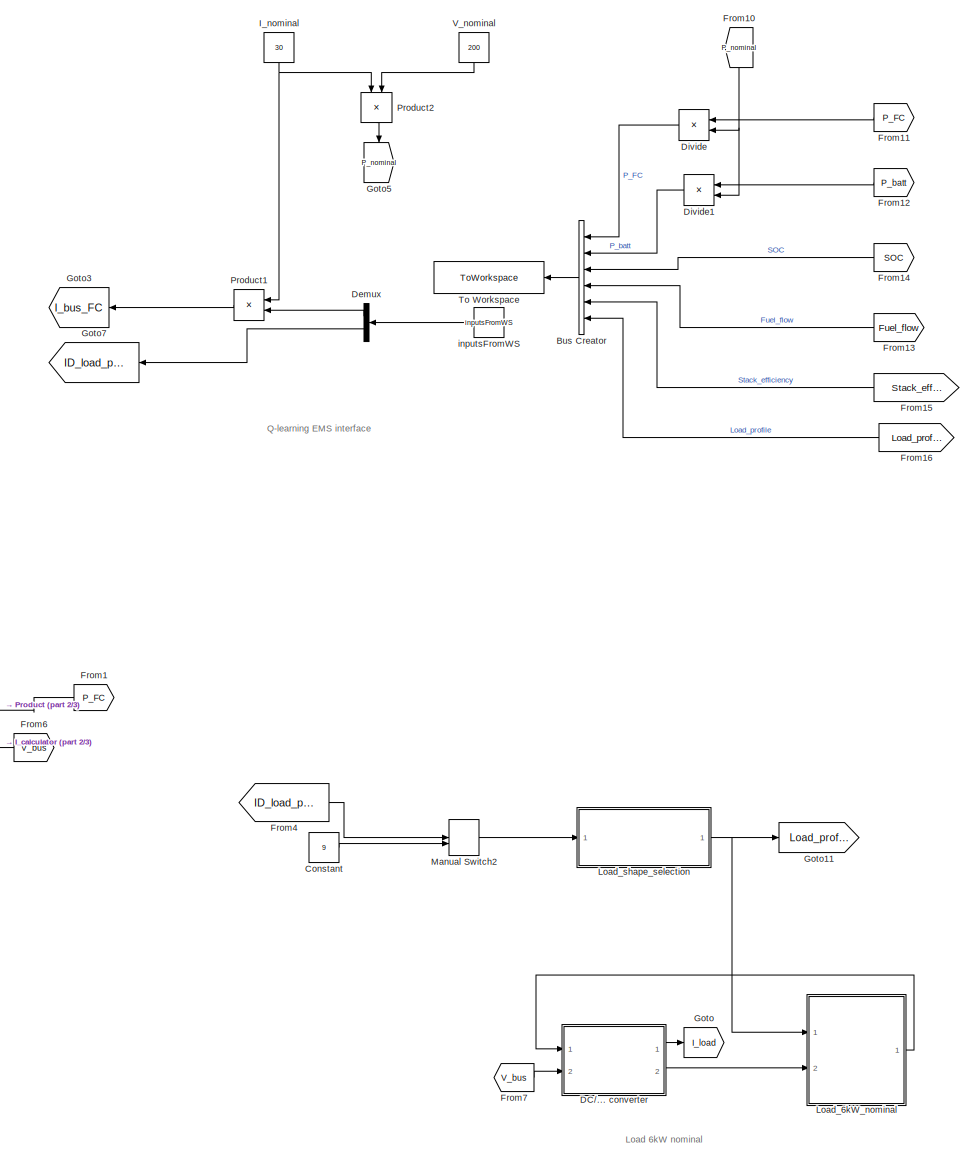
[diagram: root canvas - part 1/3, right side, full height]
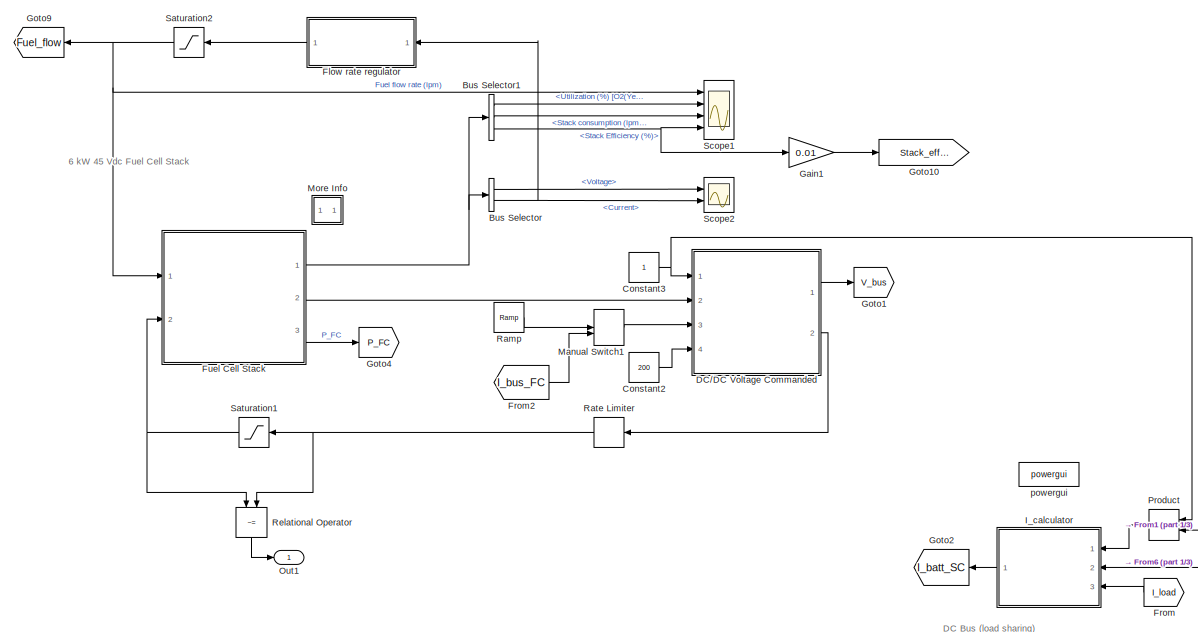
[diagram: root canvas - part 2/3, middle left region]
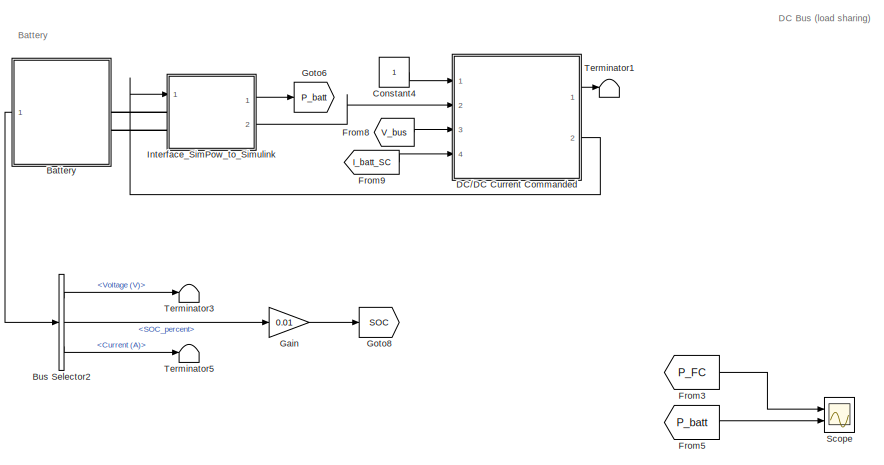
[diagram: root canvas - part 3/3, bottom left region]
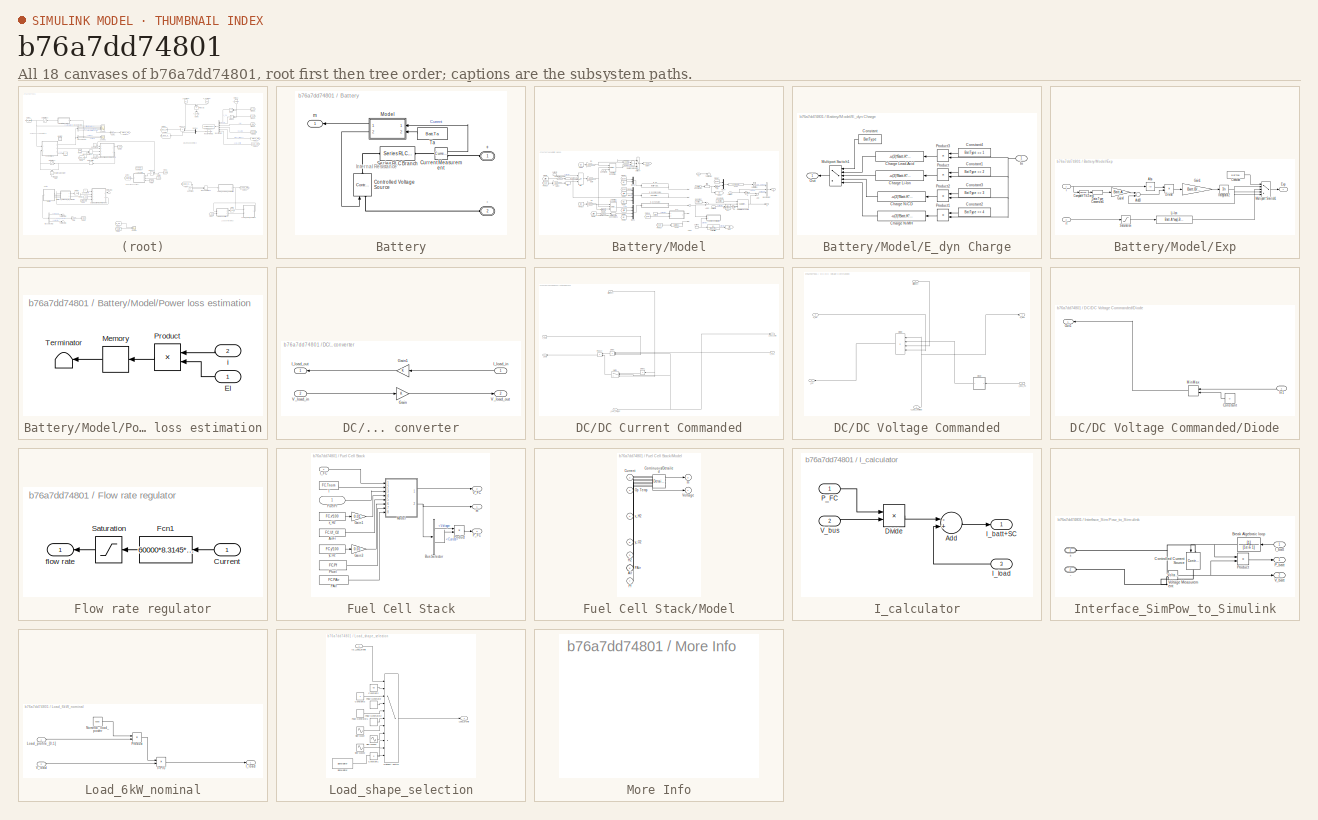
[diagram: thumbnail index - all 18 canvases of the model, root first then tree order]
MODEL slx_b76a7dd74801
KIND model
CONFIG AbsTol = auto
CONFIG EnableMultiTasking = off
CONFIG FixedStep = auto
CONFIG MaxStep = auto
CONFIG MinStep = auto
CONFIG RelTol = 1e-3
CONFIG SampleTimeConstraint = Unconstrained
CONFIG Solver = VariableStepAuto
CONFIG SolverName = VariableStepAuto
CONFIG StartTime = 0.0
CONFIG StopTime = 10
BLOCK [SubSystem] Battery
  CloseFcn = sps_rtmsupport('CloseFcn',gcbh);
  CopyFcn = sps_rtmsupport('CopyFcn',gcbh);
  DeleteFcn = sps_rtmsupport('DeleteFcn',gcbh);
  DialogController = POWERSYS.PowerSysDialog
  InitFcn = BatteryCback(gcb,1)
  LoadFcn = sps_rtmsupport('LoadFcn',gcbh); BatteryLoadFcn(gcb)
  ModelCloseFcn = sps_rtmsupport('ModelCloseFcn',gcbh);
  NameChangeFcn = sps_rtmsupport('NameChangeFcn',gcbh);
  OpenFcn = sps_rtmsupport('OpenFcn',gcbh, [1,2,3,4,9,18]);
  Ports = [0, 1, 0, 0, 0, 2]
  PostSaveFcn = sps_rtmsupport('PostSaveFcn',gcbh);
  PreCopyFcn = sps_rtmsupport('PreCopyFcn',gcbh);
  PreDeleteFcn = sps_rtmsupport('PreDeleteFcn',gcbh);
  PreSaveFcn = sps_rtmsupport('PreSaveFcn',gcbh);
  RequestExecContextInheritance = off
  StartFcn = sps_rtmsupport('StartFcn',gcbh);
  StopFcn = sps_rtmsupport('StopFcn',gcbh);
  UndoDeleteFcn = sps_rtmsupport('UndoDeleteFcn',gcbh);
BLOCK [PMIOPort] Battery/+
  Side = Left
  Tag = PMCPort
BLOCK [PMIOPort] Battery/-
  Port = 2
  Side = Left
  Tag = PMCPort
BLOCK [Reference] Battery/Controlled Voltage Source  REF=powerlib/Electrical
Sources/Controlled Voltage Source
  Ports = [1, 0, 0, 0, 0, 1, 1]
  SourceBlock = powerlib/Electrical\nSources/Controlled Voltage Source
  SourceProductBaseCode = PS
  SourceProductName = Simscape Power Systems
  SourceType = Controlled Voltage Source
BLOCK [Reference] Battery/Current Measurement  REF=powerlib/Measurements/Current Measurement
  Ports = [0, 1, 0, 0, 0, 1, 1]
  SourceBlock = powerlib/Measurements/Current Measurement
  SourceProductBaseCode = PS
  SourceProductName = Simscape Power Systems
  SourceType = Current Measurement
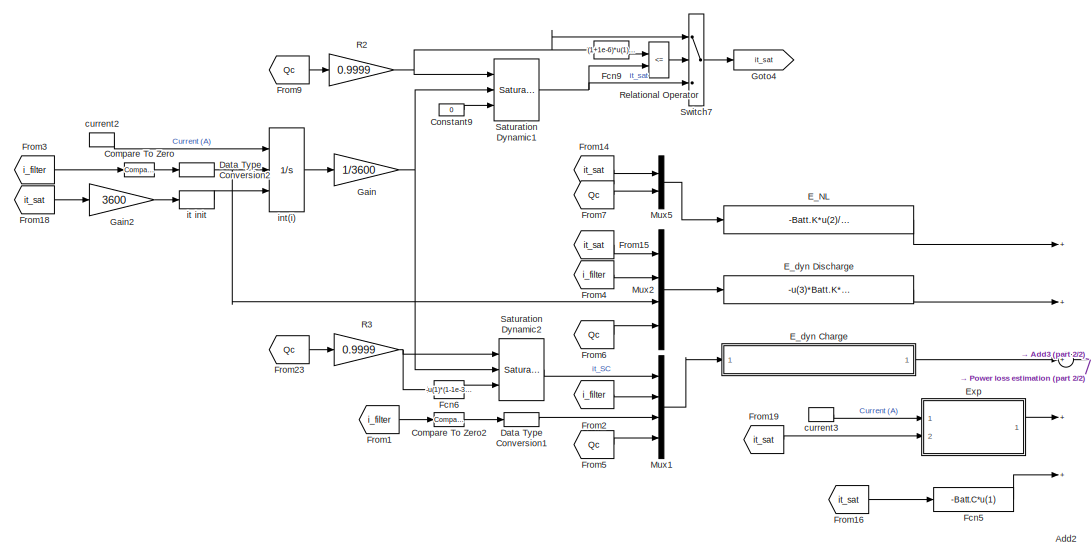
[diagram: Battery/Model - part 1/2, left side, full height]
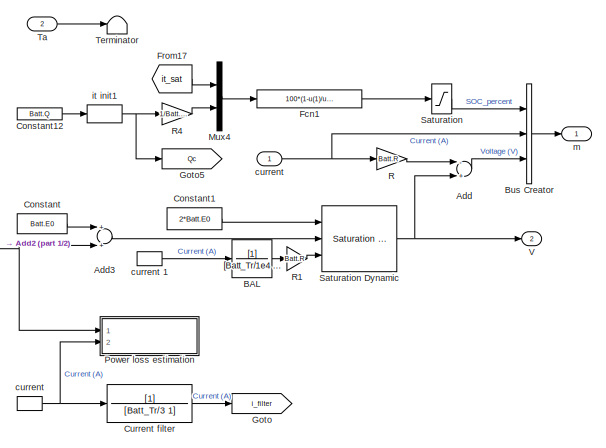
[diagram: Battery/Model - part 2/2, right side, full height]
BLOCK [SubSystem] Battery/Model
  AncestorBlock = spsBatteryModel/Continuous
  Ports = [2, 2]
  RequestExecContextInheritance = off
BLOCK [Sum] Battery/Model/Add
  InputSameDT = off
  Inputs = -+
  OutDataTypeStr = Inherit: Inherit via internal rule
  Ports = [2, 1]
  SaturateOnIntegerOverflow = off
BLOCK [Sum] Battery/Model/Add2
  InputSameDT = off
  Inputs = +++++
  OutDataTypeStr = Inherit: Inherit via internal rule
  Ports = [5, 1]
  SaturateOnIntegerOverflow = off
BLOCK [Sum] Battery/Model/Add3
  InputSameDT = off
  OutDataTypeStr = Inherit: Inherit via internal rule
  Ports = [2, 1]
  SaturateOnIntegerOverflow = off
BLOCK [TransferFcn] Battery/Model/BAL
  Denominator = [Batt_Tr/1e4 1]
BLOCK [BusCreator] Battery/Model/Bus Creator
  DisplayOption = bar
  InheritFromInputs = on
  Inputs = 3
  Ports = [3, 1]
BLOCK [Reference] Battery/Model/Compare To Zero  REF=simulink/Logic and Bit
Operations/Compare
To Zero
  Ports = [1, 1]
  SourceBlock = simulink/Logic and Bit\nOperations/Compare\nTo Zero
  SourceProductBaseCode = SL
  SourceProductName = Simulink
  SourceType = Compare To Zero
BLOCK [Reference] Battery/Model/Compare To Zero2  REF=simulink/Logic and Bit
Operations/Compare
To Zero
  Ports = [1, 1]
  SourceBlock = simulink/Logic and Bit\nOperations/Compare\nTo Zero
  SourceProductBaseCode = SL
  SourceProductName = Simulink
  SourceType = Compare To Zero
BLOCK [Constant] Battery/Model/Constant
  Value = Batt.E0
BLOCK [Constant] Battery/Model/Constant1
  Value = 2*Batt.E0
BLOCK [Constant] Battery/Model/Constant12
  Value = Batt.Q
BLOCK [Constant] Battery/Model/Constant9
  Value = 0
BLOCK [TransferFcn] Battery/Model/Current filter
  Denominator = [Batt_Tr/3 1]
BLOCK [DataTypeConversion] Battery/Model/Data Type Conversion1
  RndMeth = Floor
  SaturateOnIntegerOverflow = off
BLOCK [DataTypeConversion] Battery/Model/Data Type Conversion2
  RndMeth = Floor
  SaturateOnIntegerOverflow = off
BLOCK [Fcn] Battery/Model/E_NL
  Expr = -Batt.K*u(2)/(u(2)-u(1))*u(1)
BLOCK [SubSystem] Battery/Model/E_dyn Charge
  Ports = [1, 1]
  RequestExecContextInheritance = off
BLOCK [Fcn] Battery/Model/E_dyn Charge/Charge Lead-Acid
  Expr = -u(3)*Batt.K*u(2)*(Batt.Q/(u(1)+Batt.Q*Batt.kc))
BLOCK [Fcn] Battery/Model/E_dyn Charge/Charge Li-Ion
  Expr = -u(3)*Batt.K*u(2)*u(4)/(u(1)+u(4)*Batt.kc)
BLOCK [Fcn] Battery/Model/E_dyn Charge/Charge NiCD
  Expr = -u(3)*Batt.K*u(2)*(Batt.Q/(abs(u(1))+Batt.Q*Batt.kc))
BLOCK [Fcn] Battery/Model/E_dyn Charge/Charge NiMH
  Expr = -u(3)*Batt.K*u(2)*(Batt.Q/(abs(u(1))+Batt.Q*Batt.kc))
BLOCK [Constant] Battery/Model/E_dyn Charge/Constant
  Value = BatType
BLOCK [Constant] Battery/Model/E_dyn Charge/Constant1
  OutDataTypeStr = double
  Value = BatType == 2
BLOCK [Constant] Battery/Model/E_dyn Charge/Constant2
  OutDataTypeStr = double
  Value = BatType == 4
BLOCK [Constant] Battery/Model/E_dyn Charge/Constant3
  OutDataTypeStr = double
  Value = BatType == 3
BLOCK [Constant] Battery/Model/E_dyn Charge/Constant4
  OutDataTypeStr = double
  Value = BatType == 1
BLOCK [Inport] Battery/Model/E_dyn Charge/In
  IconDisplay = Port number
BLOCK [MultiPortSwitch] Battery/Model/E_dyn Charge/Multiport Switch1
  InputSameDT = off
  Inputs = 4
  Ports = [5, 1]
  SaturateOnIntegerOverflow = off
BLOCK [Outport] Battery/Model/E_dyn Charge/Out
  IconDisplay = Port number
BLOCK [Product] Battery/Model/E_dyn Charge/Product
  InputSameDT = off
  OutDataTypeStr = Inherit: Inherit via internal rule
  Ports = [2, 1]
  SaturateOnIntegerOverflow = off
BLOCK [Product] Battery/Model/E_dyn Charge/Product1
  InputSameDT = off
  OutDataTypeStr = Inherit: Inherit via internal rule
  Ports = [2, 1]
  SaturateOnIntegerOverflow = off
BLOCK [Product] Battery/Model/E_dyn Charge/Product2
  InputSameDT = off
  OutDataTypeStr = Inherit: Inherit via internal rule
  Ports = [2, 1]
  SaturateOnIntegerOverflow = off
BLOCK [Product] Battery/Model/E_dyn Charge/Product3
  InputSameDT = off
  OutDataTypeStr = Inherit: Inherit via internal rule
  Ports = [2, 1]
  SaturateOnIntegerOverflow = off
BLOCK [Fcn] Battery/Model/E_dyn Discharge
  Expr = -u(3)*Batt.K*u(2)*u(4)/(u(4)-u(1))
BLOCK [SubSystem] Battery/Model/Exp
  Ports = [2, 1]
  RequestExecContextInheritance = off
BLOCK [Abs] Battery/Model/Exp/Abs
  SaturateOnIntegerOverflow = off
  ZeroCross = off
BLOCK [Sum] Battery/Model/Exp/Add3
  InputSameDT = off
  Inputs = +-
  OutDataTypeStr = Inherit: Inherit via internal rule
  Ports = [2, 1]
  SaturateOnIntegerOverflow = off
BLOCK [Reference] Battery/Model/Exp/Compare To Zero2  REF=simulink/Logic and Bit
Operations/Compare
To Zero
  Ports = [1, 1]
  SourceBlock = simulink/Logic and Bit\nOperations/Compare\nTo Zero
  SourceProductBaseCode = SL
  SourceProductName = Simulink
  SourceType = Compare To Zero
BLOCK [Constant] Battery/Model/Exp/Constant
  Value = BatType
BLOCK [DataTypeConversion] Battery/Model/Exp/Data Type Conversion1
  RndMeth = Floor
  SaturateOnIntegerOverflow = off
BLOCK [Product] Battery/Model/Exp/Divide
  InputSameDT = off
  Inputs = **
  OutDataTypeStr = Inherit: Inherit via internal rule
  Ports = [2, 1]
  RndMeth = Floor
  SaturateOnIntegerOverflow = off
BLOCK [Outport] Battery/Model/Exp/Exp
  IconDisplay = Port number
BLOCK [Gain] Battery/Model/Exp/Gain1
  Gain = Batt.B/3600
  OutDataTypeStr = Inherit: Inherit via internal rule
  ParamDataTypeStr = Inherit: Inherit via internal rule
  SaturateOnIntegerOverflow = off
BLOCK [Gain] Battery/Model/Exp/Gain4
  Gain = Batt.A
  OutDataTypeStr = Inherit: Inherit via internal rule
  ParamDataTypeStr = Inherit: Inherit via internal rule
  SaturateOnIntegerOverflow = off
BLOCK [Integrator] Battery/Model/Exp/Integrator2
  InitialCondition = Batt.A*exp(-Batt.B*(1-SOC/100)*Batt.Q)
  Ports = [1, 1]
BLOCK [Fcn] Battery/Model/Exp/Li-Ion
  Expr = Batt.A*exp(-Batt.B*u(1))
BLOCK [MultiPortSwitch] Battery/Model/Exp/Multiport Switch1
  InputSameDT = off
  Inputs = 4
  Ports = [5, 1]
  SaturateOnIntegerOverflow = off
BLOCK [Saturate] Battery/Model/Exp/Saturation
  InputPortMap = u0
  LowerLimit = -inf
  Ports = [1, 1]
  UpperLimit = Batt.Qmax*(1/Batt.lambda)
BLOCK [Inport] Battery/Model/Exp/i
  IconDisplay = Port number
BLOCK [Inport] Battery/Model/Exp/it
  IconDisplay = Port number
  Port = 2
BLOCK [Fcn] Battery/Model/Fcn1
  Expr = 100*(1-u(1)/u(2))
BLOCK [Fcn] Battery/Model/Fcn5
  Expr = -Batt.C*u(1)
BLOCK [Fcn] Battery/Model/Fcn6
  Expr = -u(1)*(1-1e-3)*Batt.kcsat*0.9999
BLOCK [Fcn] Battery/Model/Fcn9
  Expr = (1+1e-6)*u(1)*(1/Batt.lambda)/0.9999
BLOCK [From] Battery/Model/From1
  GotoTag = i_filter
BLOCK [From] Battery/Model/From14
  GotoTag = it_sat
BLOCK [From] Battery/Model/From15
  GotoTag = it_sat
BLOCK [From] Battery/Model/From16
  GotoTag = it_sat
BLOCK [From] Battery/Model/From17
  GotoTag = it_sat
BLOCK [From] Battery/Model/From18
  GotoTag = it_sat
BLOCK [From] Battery/Model/From19
  GotoTag = it_sat
BLOCK [From] Battery/Model/From2
  GotoTag = i_filter
BLOCK [From] Battery/Model/From23
  GotoTag = Qc
BLOCK [From] Battery/Model/From3
  GotoTag = i_filter
BLOCK [From] Battery/Model/From4
  GotoTag = i_filter
BLOCK [From] Battery/Model/From5
  GotoTag = Qc
BLOCK [From] Battery/Model/From6
  GotoTag = Qc
BLOCK [From] Battery/Model/From7
  GotoTag = Qc
BLOCK [From] Battery/Model/From9
  GotoTag = Qc
BLOCK [Gain] Battery/Model/Gain
  Gain = 1/3600
  OutDataTypeStr = Inherit: Inherit via internal rule
  ParamDataTypeStr = Inherit: Inherit via internal rule
  SaturateOnIntegerOverflow = off
BLOCK [Gain] Battery/Model/Gain2
  Gain = 3600
  OutDataTypeStr = Inherit: Inherit via internal rule
  ParamDataTypeStr = Inherit: Inherit via internal rule
  SaturateOnIntegerOverflow = off
BLOCK [Goto] Battery/Model/Goto
  GotoTag = i_filter
BLOCK [Goto] Battery/Model/Goto4
  GotoTag = it_sat
BLOCK [Goto] Battery/Model/Goto5
  GotoTag = Qc
BLOCK [Mux] Battery/Model/Mux1
  DisplayOption = bar
  Ports = [4, 1]
BLOCK [Mux] Battery/Model/Mux2
  DisplayOption = bar
  Ports = [4, 1]
BLOCK [Mux] Battery/Model/Mux4
  DisplayOption = bar
  Inputs = 2
  Ports = [2, 1]
BLOCK [Mux] Battery/Model/Mux5
  DisplayOption = bar
  Inputs = 2
  Ports = [2, 1]
BLOCK [SubSystem] Battery/Model/Power loss estimation
  Ports = [2]
  RequestExecContextInheritance = off
BLOCK [Inport] Battery/Model/Power loss estimation/El
  IconDisplay = Port number
BLOCK [Memory] Battery/Model/Power loss estimation/Memory
BLOCK [Product] Battery/Model/Power loss estimation/Product
  InputSameDT = off
  OutDataTypeStr = Inherit: Inherit via internal rule
  Ports = [2, 1]
  RndMeth = Floor
  SaturateOnIntegerOverflow = off
BLOCK [Terminator] Battery/Model/Power loss estimation/Terminator
BLOCK [Inport] Battery/Model/Power loss estimation/i
  IconDisplay = Port number
  Port = 2
BLOCK [Gain] Battery/Model/R
  Gain = Batt.R
  OutDataTypeStr = Inherit: Inherit via internal rule
  ParamDataTypeStr = Inherit: Inherit via internal rule
  SaturateOnIntegerOverflow = off
BLOCK [Gain] Battery/Model/R1
  Gain = Batt.R
  OutDataTypeStr = Inherit: Inherit via internal rule
  ParamDataTypeStr = Inherit: Inherit via internal rule
  SaturateOnIntegerOverflow = off
BLOCK [Gain] Battery/Model/R2
  Gain = 0.9999
  OutDataTypeStr = Inherit: Inherit via internal rule
  ParamDataTypeStr = Inherit: Inherit via internal rule
  SaturateOnIntegerOverflow = off
BLOCK [Gain] Battery/Model/R3
  Gain = 0.9999
  OutDataTypeStr = Inherit: Inherit via internal rule
  ParamDataTypeStr = Inherit: Inherit via internal rule
  SaturateOnIntegerOverflow = off
BLOCK [Gain] Battery/Model/R4
  Gain = 1/Batt.lambda
  OutDataTypeStr = Inherit: Inherit via internal rule
  ParamDataTypeStr = Inherit: Inherit via internal rule
  SaturateOnIntegerOverflow = off
BLOCK [RelationalOperator] Battery/Model/Relational Operator
  InputSameDT = off
  Operator = <=
  Ports = [2, 1]
  RndMeth = Simplest
BLOCK [Saturate] Battery/Model/Saturation
  InputPortMap = u0
  LowerLimit = 0
  Ports = [1, 1]
  UpperLimit = 100
BLOCK [Reference] Battery/Model/Saturation Dynamic  REF=simulink/Discontinuities/Saturation
Dynamic
  Ports = [3, 1]
  SourceBlock = simulink/Discontinuities/Saturation\nDynamic
  SourceProductBaseCode = SL
  SourceProductName = Simulink
  SourceType = Saturation Dynamic
BLOCK [Reference] Battery/Model/Saturation Dynamic1  REF=simulink/Discontinuities/Saturation
Dynamic
  Ports = [3, 1]
  SourceBlock = simulink/Discontinuities/Saturation\nDynamic
  SourceProductBaseCode = SL
  SourceProductName = Simulink
  SourceType = Saturation Dynamic
BLOCK [Reference] Battery/Model/Saturation Dynamic2  REF=simulink/Discontinuities/Saturation
Dynamic
  Ports = [3, 1]
  SourceBlock = simulink/Discontinuities/Saturation\nDynamic
  SourceProductBaseCode = SL
  SourceProductName = Simulink
  SourceType = Saturation Dynamic
BLOCK [Switch] Battery/Model/Switch7
  Criteria = u2 > Threshold
  InputSameDT = off
  SaturateOnIntegerOverflow = off
BLOCK [Inport] Battery/Model/Ta
  IconDisplay = Port number
  Port = 2
BLOCK [Terminator] Battery/Model/Terminator
BLOCK [Outport] Battery/Model/V
  IconDisplay = Port number
  Port = 2
BLOCK [Inport] Battery/Model/current
  IconDisplay = Port number
BLOCK [InportShadow] Battery/Model/current 
  IconDisplay = Port number
BLOCK [InportShadow] Battery/Model/current 1
  IconDisplay = Port number
BLOCK [InportShadow] Battery/Model/current2
  IconDisplay = Port number
BLOCK [InportShadow] Battery/Model/current3
  IconDisplay = Port number
BLOCK [Integrator] Battery/Model/int(i)
  ExternalReset = rising
  InitialCondition = (1-SOC/100)*Q*3600
  InitialConditionSource = external
  LimitOutput = on
  Ports = [3, 1]
  UpperSaturationLimit = Batt.Qmax*3600
BLOCK [Memory] Battery/Model/it init
  InitialCondition = (1-SOC/100)*Batt.Q*(1/Batt.lambda)*3600
BLOCK [Memory] Battery/Model/it init1
  InitialCondition = Batt.Q
BLOCK [Outport] Battery/Model/m
  IconDisplay = Port number
BLOCK [Reference] Battery/Series RLC Branch  REF=powerlib/Elements/Series RLC Branch
  Ports = [0, 0, 0, 0, 0, 1, 1]
  SourceBlock = powerlib/Elements/Series RLC Branch
  SourceProductBaseCode = PS
  SourceProductName = Simscape Power Systems
  SourceType = Series RLC Branch
BLOCK [Constant] Battery/Ta
  Value = Batt.Ta
BLOCK [Outport] Battery/m
  IconDisplay = Port number
BLOCK [BusCreator] Bus Creator
  DisplayOption = bar
  InheritFromInputs = on
  Inputs = 6
  Ports = [6, 1]
BLOCK [BusSelector] Bus Selector
  OutputAsBus = off
  OutputSignals = Voltage,Current
  Ports = [1, 2]
BLOCK [BusSelector] Bus Selector1
  OutputAsBus = off
  OutputSignals = Utilization (%) [O2(Yellow); H2(Magenta)],Stack consumption (lpm) [Air(Yellow); Fuel(Magenta)],Stack Efficiency (%)
  Ports = [1, 3]
BLOCK [BusSelector] Bus Selector2
  OutputAsBus = off
  OutputSignals = Voltage (V),SOC_percent,Current (A)
  Ports = [1, 3]
BLOCK [Constant] Constant
  Value = 9
BLOCK [Constant] Constant2
  Value = 200
BLOCK [Constant] Constant3
BLOCK [Constant] Constant4
BLOCK [SubSystem] DC//... converter
  Ports = [2, 2]
  RequestExecContextInheritance = off
BLOCK [Gain] DC//... converter/Gain
  OutDataTypeStr = Inherit: Inherit via internal rule
  ParamDataTypeStr = Inherit: Inherit via internal rule
  SaturateOnIntegerOverflow = off
BLOCK [Gain] DC//... converter/Gain1
  OutDataTypeStr = Inherit: Inherit via internal rule
  ParamDataTypeStr = Inherit: Inherit via internal rule
  SaturateOnIntegerOverflow = off
BLOCK [Inport] DC//... converter/I_load_in
  IconDisplay = Port number
BLOCK [Outport] DC//... converter/I_load_out
  IconDisplay = Port number
BLOCK [Inport] DC//... converter/V_load_in
  IconDisplay = Port number
  Port = 2
BLOCK [Outport] DC//... converter/V_load_out
  IconDisplay = Port number
  Port = 2
BLOCK [SubSystem] DC//DC Current Commanded
  Ports = [4, 2]
  RequestExecContextInheritance = off
BLOCK [Product] DC//DC Current Commanded/Divide
  InputSameDT = off
  Inputs = **/
  OutDataTypeStr = Inherit: Inherit via internal rule
  Ports = [3, 1]
  RndMeth = Floor
  SaturateOnIntegerOverflow = off
BLOCK [Product] DC//DC Current Commanded/Divide1
  InputSameDT = off
  Inputs = /
  OutDataTypeStr = Inherit: Inherit via internal rule
  Ports = [1, 1]
  RndMeth = Floor
  SaturateOnIntegerOverflow = off
BLOCK [Inport] DC//DC Current Commanded/Efficiency
  IconDisplay = Port number
BLOCK [Outport] DC//DC Current Commanded/I_batt
  IconDisplay = Port number
  Port = 2
BLOCK [Outport] DC//DC Current Commanded/I_bus_batt
  IconDisplay = Port number
BLOCK [Inport] DC//DC Current Commanded/I_bus_batt_ref
  IconDisplay = Port number
  Port = 4
BLOCK [Product] DC//DC Current Commanded/Product
  InputSameDT = off
  OutDataTypeStr = Inherit: Inherit via internal rule
  Ports = [2, 1]
  RndMeth = Floor
  SaturateOnIntegerOverflow = off
BLOCK [Switch] DC//DC Current Commanded/Switch
  Criteria = u2 > Threshold
  InputSameDT = off
  SaturateOnIntegerOverflow = off
BLOCK [Inport] DC//DC Current Commanded/V_batt
  IconDisplay = Port number
  Port = 2
BLOCK [Inport] DC//DC Current Commanded/V_bus
  IconDisplay = Port number
  Port = 3
BLOCK [SubSystem] DC//DC Voltage Commanded
  Ports = [4, 2]
  RequestExecContextInheritance = off
BLOCK [SubSystem] DC//DC Voltage Commanded/Diode
  Ports = [1, 1]
  RequestExecContextInheritance = off
BLOCK [Constant] DC//DC Voltage Commanded/Diode/Constant
  Value = 0
BLOCK [Inport] DC//DC Voltage Commanded/Diode/In1
  IconDisplay = Port number
BLOCK [MinMax] DC//DC Voltage Commanded/Diode/MinMax
  Function = max
  InputSameDT = off
  Inputs = 2
  Ports = [2, 1]
  SaturateOnIntegerOverflow = off
BLOCK [Outport] DC//DC Voltage Commanded/Diode/Out1
  IconDisplay = Port number
BLOCK [Product] DC//DC Voltage Commanded/Divide
  InputSameDT = off
  Inputs = **//
  OutDataTypeStr = Inherit: Inherit via internal rule
  Ports = [4, 1]
  RndMeth = Floor
  SaturateOnIntegerOverflow = off
BLOCK [Inport] DC//DC Voltage Commanded/Efficiency
  IconDisplay = Port number
BLOCK [Outport] DC//DC Voltage Commanded/I_FC
  IconDisplay = Port number
  Port = 2
BLOCK [Inport] DC//DC Voltage Commanded/I_bus_FC
  IconDisplay = Port number
  Port = 3
BLOCK [Inport] DC//DC Voltage Commanded/V_FC
  IconDisplay = Port number
  Port = 2
BLOCK [Outport] DC//DC Voltage Commanded/V_bus
  IconDisplay = Port number
BLOCK [Inport] DC//DC Voltage Commanded/V_bus_nominal
  IconDisplay = Port number
  Port = 4
BLOCK [Demux] Demux
  DisplayOption = bar
  Outputs = 2
  Ports = [1, 2]
BLOCK [Product] Divide
  InputSameDT = off
  Inputs = */
  OutDataTypeStr = Inherit: Inherit via internal rule
  Ports = [2, 1]
  RndMeth = Floor
  SaturateOnIntegerOverflow = off
BLOCK [Product] Divide1
  InputSameDT = off
  Inputs = */
  OutDataTypeStr = Inherit: Inherit via internal rule
  Ports = [2, 1]
  RndMeth = Floor
  SaturateOnIntegerOverflow = off
BLOCK [SubSystem] Flow rate regulator
  Ports = [1, 1]
  RequestExecContextInheritance = off
BLOCK [Inport] Flow rate regulator/Current
  IconDisplay = Port number
BLOCK [Fcn] Flow rate regulator/Fcn1
  Expr = 60000*8.3145*(273+T)*Nc*u(1)/(2*96485*(Pf*101325)*Uf_H2/100*x/100)
BLOCK [Saturate] Flow rate regulator/Saturation
  InputPortMap = u0
  LowerLimit = 1
  Ports = [1, 1]
  UpperLimit = inf
BLOCK [Outport] Flow rate regulator/flow rate
  IconDisplay = Port number
BLOCK [From] From
  GotoTag = I_load
BLOCK [From] From1
  GotoTag = P_FC
BLOCK [From] From10
  GotoTag = P_nominal
BLOCK [From] From11
  GotoTag = P_FC
BLOCK [From] From12
  GotoTag = P_batt
BLOCK [From] From13
  GotoTag = Fuel_flow
BLOCK [From] From14
  GotoTag = SOC
BLOCK [From] From15
  GotoTag = Stack_efficiency
BLOCK [From] From16
  GotoTag = Load_profile
BLOCK [From] From2
  GotoTag = I_bus_FC
BLOCK [From] From3
  GotoTag = P_FC
BLOCK [From] From4
  GotoTag = ID_load_profile
BLOCK [From] From5
  GotoTag = P_batt
BLOCK [From] From6
  GotoTag = V_bus
BLOCK [From] From7
  GotoTag = V_bus
BLOCK [From] From8
  GotoTag = V_bus
BLOCK [From] From9
  GotoTag = I_batt_SC
BLOCK [SubSystem] Fuel Cell Stack
  CloseFcn = sps_rtmsupport('CloseFcn',gcbh);
  CopyFcn = sps_rtmsupport('CopyFcn',gcbh);
  DeleteFcn = sps_rtmsupport('DeleteFcn',gcbh);
  DialogController = POWERSYS.PowerSysDialog
  LoadFcn = sps_rtmsupport('LoadFcn',gcbh);FuelCellLoadFcn(gcb)
  ModelCloseFcn = sps_rtmsupport('ModelCloseFcn',gcbh);
  NameChangeFcn = sps_rtmsupport('NameChangeFcn',gcbh);
  OpenFcn = sps_rtmsupport('OpenFcn',gcbh, [1 2 3 13 14 15 16 17 18 19 20]);
  Ports = [2, 3]
  PostSaveFcn = sps_rtmsupport('PostSaveFcn',gcbh);
  PreCopyFcn = sps_rtmsupport('PreCopyFcn',gcbh);
  PreDeleteFcn = sps_rtmsupport('PreDeleteFcn',gcbh);
  PreSaveFcn = sps_rtmsupport('PreSaveFcn',gcbh);
  RequestExecContextInheritance = off
  StartFcn = sps_rtmsupport('StartFcn',gcbh);
  StopFcn = sps_rtmsupport('StopFcn',gcbh);
  UndoDeleteFcn = sps_rtmsupport('UndoDeleteFcn',gcbh);
BLOCK [Constant] Fuel Cell Stack/AirFr
  Value = FC.Uf_O2
BLOCK [BusSelector] Fuel Cell Stack/Bus Selector
  OutputAsBus = off
  OutputSignals = Voltage,Current
  Ports = [1, 2]
BLOCK [Inport] Fuel Cell Stack/FuelFr
  IconDisplay = Port number
BLOCK [Gain] Fuel Cell Stack/Gain1
  Gain = 0.01
  OutDataTypeStr = Inherit: Inherit via internal rule
  ParamDataTypeStr = Inherit: Inherit via internal rule
  SaturateOnIntegerOverflow = off
BLOCK [Gain] Fuel Cell Stack/Gain3
  Gain = 0.01
  OutDataTypeStr = Inherit: Inherit via internal rule
  ParamDataTypeStr = Inherit: Inherit via internal rule
  SaturateOnIntegerOverflow = off
BLOCK [Inport] Fuel Cell Stack/I_FC
  IconDisplay = Port number
  Port = 2
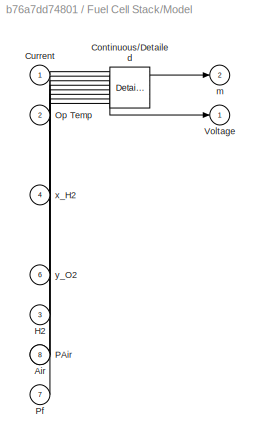
BLOCK [SubSystem] Fuel Cell Stack/Model
  AttributesFormatString = %<BlockChoice>
  BlockChoice = Continuous/Detailed
  MemberBlocks = Continuous/Detailed,Continuous/Simplified,Discrete/Detailed,Discrete/Simplified
  Ports = [8, 2]
  RequestExecContextInheritance = off
  TemplateBlock = spsFuelCellModel/Fuel Cell model
BLOCK [Inport] Fuel Cell Stack/Model/Air
  IconDisplay = Port number
  Port = 5
BLOCK [Reference] Fuel Cell Stack/Model/Continuous//Detailed  REF=spsFuelCellModel/Continuous//Detailed
  Ports = [8, 2]
  SourceBlock = spsFuelCellModel/Continuous//Detailed
  SourceType = SubSystem
BLOCK [Inport] Fuel Cell Stack/Model/Current
  IconDisplay = Port number
BLOCK [Inport] Fuel Cell Stack/Model/H2
  IconDisplay = Port number
  Port = 3
BLOCK [Inport] Fuel Cell Stack/Model/Op Temp
  IconDisplay = Port number
  Port = 2
BLOCK [Inport] Fuel Cell Stack/Model/PAir
  IconDisplay = Port number
  Port = 8
BLOCK [Inport] Fuel Cell Stack/Model/Pf
  IconDisplay = Port number
  Port = 7
BLOCK [Outport] Fuel Cell Stack/Model/Voltage
  IconDisplay = Port number
BLOCK [Outport] Fuel Cell Stack/Model/m
  IconDisplay = Port number
  Port = 2
BLOCK [Inport] Fuel Cell Stack/Model/x_H2
  IconDisplay = Port number
  Port = 4
BLOCK [Inport] Fuel Cell Stack/Model/y_O2
  IconDisplay = Port number
  Port = 6
BLOCK [Constant] Fuel Cell Stack/PAir
  Value = FC.PAir
BLOCK [Outport] Fuel Cell Stack/P_FC
  IconDisplay = Port number
  Port = 3
BLOCK [Constant] Fuel Cell Stack/Pfuel
  Value = FC.Pf
BLOCK [Product] Fuel Cell Stack/Product
  InputSameDT = off
  OutDataTypeStr = Inherit: Inherit via internal rule
  Ports = [2, 1]
  RndMeth = Floor
  SaturateOnIntegerOverflow = off
BLOCK [Constant] Fuel Cell Stack/T
  Value = FC.Tnom
BLOCK [Outport] Fuel Cell Stack/V_FC
  IconDisplay = Port number
  Port = 2
BLOCK [Outport] Fuel Cell Stack/m
  IconDisplay = Port number
BLOCK [Constant] Fuel Cell Stack/x_H2
  Value = FC.x*100
BLOCK [Constant] Fuel Cell Stack/y_O2
  Value = FC.y*100
BLOCK [Gain] Gain
  Gain = 0.01
  OutDataTypeStr = Inherit: Inherit via internal rule
  ParamDataTypeStr = Inherit: Inherit via internal rule
  SaturateOnIntegerOverflow = off
BLOCK [Gain] Gain1
  Gain = 0.01
  OutDataTypeStr = Inherit: Inherit via internal rule
  ParamDataTypeStr = Inherit: Inherit via internal rule
  SaturateOnIntegerOverflow = off
BLOCK [Goto] Goto
  GotoTag = I_load
BLOCK [Goto] Goto1
  GotoTag = V_bus
BLOCK [Goto] Goto10
  GotoTag = Stack_efficiency
BLOCK [Goto] Goto11
  GotoTag = Load_profile
BLOCK [Goto] Goto2
  GotoTag = I_batt_SC
BLOCK [Goto] Goto3
  GotoTag = I_bus_FC
BLOCK [Goto] Goto4
  GotoTag = P_FC
BLOCK [Goto] Goto5
  GotoTag = P_nominal
BLOCK [Goto] Goto6
  GotoTag = P_batt
BLOCK [Goto] Goto7
  GotoTag = ID_load_profile
BLOCK [Goto] Goto8
  GotoTag = SOC
BLOCK [Goto] Goto9
  GotoTag = Fuel_flow
BLOCK [SubSystem] I_calculator
  Ports = [3, 1]
  RequestExecContextInheritance = off
BLOCK [Sum] I_calculator/Add
  InputSameDT = off
  Inputs = -+
  OutDataTypeStr = Inherit: Inherit via internal rule
  Ports = [2, 1]
  SaturateOnIntegerOverflow = off
BLOCK [Product] I_calculator/Divide
  InputSameDT = off
  Inputs = */
  OutDataTypeStr = Inherit: Inherit via internal rule
  Ports = [2, 1]
  RndMeth = Floor
  SaturateOnIntegerOverflow = off
BLOCK [Outport] I_calculator/I_batt+SC
  IconDisplay = Port number
BLOCK [Inport] I_calculator/I_load
  IconDisplay = Port number
  Port = 3
BLOCK [Inport] I_calculator/P_FC
  IconDisplay = Port number
BLOCK [Inport] I_calculator/V_bus
  IconDisplay = Port number
  Port = 2
BLOCK [Constant] I_nominal
  Value = 30
BLOCK [SubSystem] Interface_SimPow_to_Simulink
  Ports = [1, 2, 0, 0, 0, 2]
  RequestExecContextInheritance = off
BLOCK [PMIOPort] Interface_SimPow_to_Simulink/+
  Side = Left
BLOCK [PMIOPort] Interface_SimPow_to_Simulink/-
  Port = 2
  Side = Left
BLOCK [TransferFcn] Interface_SimPow_to_Simulink/Break Algebraic loop
  Denominator = [1e-6 1]
BLOCK [Reference] Interface_SimPow_to_Simulink/Controlled Current Source  REF=powerlib/Electrical
Sources/Controlled Current Source
  Ports = [1, 0, 0, 0, 0, 1, 1]
  SourceBlock = powerlib/Electrical\nSources/Controlled Current Source
  SourceProductBaseCode = PS
  SourceProductName = Simscape Power Systems
  SourceType = Controlled Current Source
BLOCK [Inport] Interface_SimPow_to_Simulink/I_batt
  IconDisplay = Port number
BLOCK [Outport] Interface_SimPow_to_Simulink/P_batt
  IconDisplay = Port number
BLOCK [Product] Interface_SimPow_to_Simulink/Product
  InputSameDT = off
  OutDataTypeStr = Inherit: Inherit via internal rule
  Ports = [2, 1]
  RndMeth = Floor
  SaturateOnIntegerOverflow = off
BLOCK [Outport] Interface_SimPow_to_Simulink/V_batt
  IconDisplay = Port number
  Port = 2
BLOCK [Reference] Interface_SimPow_to_Simulink/Voltage Measurement  REF=powerlib/Measurements/Voltage Measurement
  Ports = [0, 1, 0, 0, 0, 2]
  SourceBlock = powerlib/Measurements/Voltage Measurement
  SourceProductBaseCode = PS
  SourceProductName = Simscape Power Systems
  SourceType = Voltage Measurement
  UserDataPersistent = on
BLOCK [SubSystem] Load_6kW_nominal
  Ports = [2, 1]
  RequestExecContextInheritance = off
BLOCK [Product] Load_6kW_nominal/I=P//U
  InputSameDT = off
  Inputs = */
  OutDataTypeStr = Inherit: Inherit via internal rule
  Ports = [2, 1]
  RndMeth = Floor
  SaturateOnIntegerOverflow = off
BLOCK [Outport] Load_6kW_nominal/I_load
  IconDisplay = Port number
BLOCK [Inport] Load_6kW_nominal/Load_profile_[0;1]
  IconDisplay = Port number
BLOCK [Constant] Load_6kW_nominal/Nominal_load_power
  Value = 6000
BLOCK [Product] Load_6kW_nominal/Product
  InputSameDT = off
  OutDataTypeStr = Inherit: Inherit via internal rule
  Ports = [2, 1]
  RndMeth = Floor
  SaturateOnIntegerOverflow = off
BLOCK [Inport] Load_6kW_nominal/V_load
  IconDisplay = Port number
  Port = 2
BLOCK [SubSystem] Load_shape_selection
  Ports = [1, 1]
  RequestExecContextInheritance = off
BLOCK [Constant] Load_shape_selection/Constant1
  Value = 0
BLOCK [Constant] Load_shape_selection/Constant2
  Value = 0.5
BLOCK [Constant] Load_shape_selection/Constant3
BLOCK [Inport] Load_shape_selection/ID_Load_profile
  IconDisplay = Port number
BLOCK [Outport] Load_shape_selection/Load_profile
  IconDisplay = Port number
BLOCK [MultiPortSwitch] Load_shape_selection/Multiport Switch
  DataPortIndices = {1,2,3,4,5,6,7,8,9,10}
  DataPortOrder = Specify indices
  InputSameDT = off
  Ports = [11, 1]
  SaturateOnIntegerOverflow = off
BLOCK [DiscretePulseGenerator] Load_shape_selection/Pulse Generator
  Period = 1
  PhaseDelay = 10
  Ports = [0, 1]
  PulseType = Time based
  PulseWidth = 50
BLOCK [DiscretePulseGenerator] Load_shape_selection/Pulse Generator1
  Period = 5
  PhaseDelay = 10
  Ports = [0, 1]
  PulseType = Time based
  PulseWidth = 50
BLOCK [DiscretePulseGenerator] Load_shape_selection/Pulse Generator2
  Period = 60
  PhaseDelay = 10
  Ports = [0, 1]
  PulseType = Time based
  PulseWidth = 50
BLOCK [Reference] Load_shape_selection/Signal Editor  REF=SignalEditorBlockLib/Signal Editor
  Ports = [0, 1]
  SourceBlock = SignalEditorBlockLib/Signal Editor
  SourceType = SignalEditor
  UserDataPersistent = on
BLOCK [Sin] Load_shape_selection/Sine Wave
  Amplitude = 0.5
  Bias = 0.5
  Frequency = 2*pi
  Phase = -pi/2
  Ports = [0, 1]
  SampleTime = 0
BLOCK [Sin] Load_shape_selection/Sine Wave1
  Amplitude = 0.5
  Bias = 0.5
  Frequency = 2*pi/5
  Phase = -pi/2
  Ports = [0, 1]
  SampleTime = 0
BLOCK [Sin] Load_shape_selection/Sine Wave2
  Amplitude = 0.5
  Bias = 0.5
  Frequency = 2*pi/60
  Phase = -pi/2
  Ports = [0, 1]
  SampleTime = 0
BLOCK [ManualSwitch] Manual Switch1
  CurrentSetting = 0
BLOCK [ManualSwitch] Manual Switch2
BLOCK [SubSystem] More Info
  OpenFcn = showdemo(bdroot(gcb))
  Ports = []
  RequestExecContextInheritance = off
BLOCK [Outport] Out1
  IconDisplay = Port number
BLOCK [Product] Product
  InputSameDT = off
  OutDataTypeStr = Inherit: Inherit via internal rule
  Ports = [2, 1]
  RndMeth = Floor
  SaturateOnIntegerOverflow = off
BLOCK [Product] Product1
  InputSameDT = off
  OutDataTypeStr = Inherit: Inherit via internal rule
  Ports = [2, 1]
  RndMeth = Floor
  SaturateOnIntegerOverflow = off
BLOCK [Product] Product2
  InputSameDT = off
  OutDataTypeStr = Inherit: Inherit via internal rule
  Ports = [2, 1]
  RndMeth = Floor
  SaturateOnIntegerOverflow = off
BLOCK [Reference] Ramp  REF=simulink/Sources/Ramp
  Ports = [0, 1]
  SourceBlock = simulink/Sources/Ramp
  SourceProductBaseCode = SL
  SourceProductName = Simulink
  SourceType = Ramp
BLOCK [RateLimiter] Rate Limiter
  FallingSlewLimit = -8
  RisingSlewLimit = 8
  SampleTimeMode = inherited
BLOCK [RelationalOperator] Relational Operator
  InputSameDT = off
  Operator = ~=
  OutDataTypeStr = boolean
  Ports = [2, 1]
  RndMeth = Simplest
BLOCK [Saturate] Saturation1
  InputPortMap = u0
  LowerLimit = 0
  Ports = [1, 1]
  UpperLimit = 225
BLOCK [Saturate] Saturation2
  InputPortMap = u0
  LowerLimit = 0
  Ports = [1, 1]
  UpperLimit = 85
BLOCK [Scope] Scope
  Floating = off
  NumInputPorts = 2
  Ports = [2]
  ScopeSpecificationString = Simulink.scopes.TimeScopeBlockCfg('CurrentConfiguration', extmgr.ConfigurationSet(extmgr.Configuration('Core','General UI',true),extmgr.Configuration('Core','Source UI',true),extmgr.Configuration('Sources','WiredSimulink',true,'DataLoggingVariableName','ScopeData2'),extmgr.Configuration('Visuals','Time Domain',true,'SerializedDisplays',{struct('MinYLimReal','-750.00091','MaxYLimReal','6750.00823',...<+1414ch>
BLOCK [Scope] Scope1
  Floating = off
  NumInputPorts = 4
  Ports = [4]
  ScopeSpecificationString = Simulink.scopes.TimeScopeBlockCfg('CurrentConfiguration', extmgr.ConfigurationSet(extmgr.Configuration('Core','General UI',true,'FigureColor',[0.156862745098039 0.156862745098039 0.156862745098039]),extmgr.Configuration('Core','Source UI',true),extmgr.Configuration('Sources','WiredSimulink',true,'DataLoggingVariableName','ScopeData1','DataLoggingSaveFormat','StructureWithTime','DataLoggingDecimati...<+6957ch>
BLOCK [Scope] Scope2
  Floating = off
  NumInputPorts = 2
  Ports = [2]
  ScopeSpecificationString = Simulink.scopes.TimeScopeBlockCfg('CurrentConfiguration', extmgr.ConfigurationSet(extmgr.Configuration('Core','General UI',true,'FigureColor',[0.156862745098039 0.156862745098039 0.156862745098039]),extmgr.Configuration('Core','Source UI',true),extmgr.Configuration('Sources','WiredSimulink',true,'DataLoggingSaveFormat','StructureWithTime','DataLoggingDecimation','1'),extmgr.Configuration('Visuals'...<+6730ch>
BLOCK [Terminator] Terminator1
BLOCK [Terminator] Terminator3
BLOCK [Terminator] Terminator5
BLOCK [ToWorkspace] To Workspace
  FixptAsFi = on
  MaxDataPoints = inf
  Ports = [1]
  SampleTime = -1
  Save2DSignal = 3-D array (concatenate along third dimension)
  SaveFormat = Timeseries
  VariableName = outputsToWS
BLOCK [Constant] V_nominal
  Value = 200
BLOCK [Constant] inputsFromWS
  Value = inputsFromWS
BLOCK [Reference] powergui  REF=powerlib/powergui
  Ports = []
  SourceBlock = powerlib/powergui
  SourceProductBaseCode = PS
  SourceProductName = Simscape Power Systems
  SourceType = PSB option menu block
ANNOTATION (root): 6 kW 45 Vdc Fuel Cell Stack
ANNOTATION (root): Battery
ANNOTATION (root): DC Bus (load sharing)
ANNOTATION (root): Load 6kW nominal
ANNOTATION (root): Q-learning EMS interface
ANNOTATION Battery: Internal Resistance
LINE Battery:1 -> Bus Selector2:1
LINE Bus Creator:1 -> To Workspace:1
LINE Bus Selector1:1 -> Scope1:2
LINE Bus Selector1:2 -> Scope1:3
NET Bus Selector1:3 -> Gain1:1, Scope1:4
LINE Bus Selector2:1 -> Terminator3:1
LINE Bus Selector2:2 -> Gain:1
LINE Bus Selector2:3 -> Terminator5:1
LINE Bus Selector:1 -> Scope2:1
NET Bus Selector:2 -> Flow rate regulator:1, Scope2:2
LINE Constant2:1 -> DC//DC Voltage Commanded:4
NET Constant3:1 -> DC//DC Voltage Commanded:1, Product:1
LINE Constant4:1 -> DC//DC Current Commanded:1
LINE Constant:1 -> Manual Switch2:2
LINE DC//... converter/Gain1:1 -> DC//... converter/I_load_out:1
LINE DC//... converter/Gain:1 -> DC//... converter/V_load_out:1
LINE DC//... converter/I_load_in:1 -> DC//... converter/Gain1:1
LINE DC//... converter/V_load_in:1 -> DC//... converter/Gain:1
LINE DC//... converter:1 -> Goto:1
LINE DC//... converter:2 -> Load_6kW_nominal:2
LINE DC//DC Current Commanded/Divide1:1 -> DC//DC Current Commanded/Switch:1
LINE DC//DC Current Commanded/Divide:1 -> DC//DC Current Commanded/Product:1
NET DC//DC Current Commanded/Efficiency:1 -> DC//DC Current Commanded/Divide1:1, DC//DC Current Commanded/Switch:3
NET DC//DC Current Commanded/I_bus_batt_ref:1 -> DC//DC Current Commanded/Divide:2, DC//DC Current Commanded/I_bus_batt:1, DC//DC Current Commanded/Switch:2
LINE DC//DC Current Commanded/Product:1 -> DC//DC Current Commanded/I_batt:1
LINE DC//DC Current Commanded/Switch:1 -> DC//DC Current Commanded/Product:2
LINE DC//DC Current Commanded/V_batt:1 -> DC//DC Current Commanded/Divide:3
LINE DC//DC Current Commanded/V_bus:1 -> DC//DC Current Commanded/Divide:1
LINE DC//DC Current Commanded:1 -> Terminator1:1
LINE DC//DC Current Commanded:2 -> Interface_SimPow_to_Simulink:1
LINE DC//DC Voltage Commanded/Diode/Constant:1 -> DC//DC Voltage Commanded/Diode/MinMax:2
LINE DC//DC Voltage Commanded/Diode/In1:1 -> DC//DC Voltage Commanded/Diode/MinMax:1
LINE DC//DC Voltage Commanded/Diode/MinMax:1 -> DC//DC Voltage Commanded/Diode/Out1:1
LINE DC//DC Voltage Commanded/Diode:1 -> DC//DC Voltage Commanded/Divide:2
LINE DC//DC Voltage Commanded/Divide:1 -> DC//DC Voltage Commanded/I_FC:1
LINE DC//DC Voltage Commanded/Efficiency:1 -> DC//DC Voltage Commanded/Divide:3
LINE DC//DC Voltage Commanded/I_bus_FC:1 -> DC//DC Voltage Commanded/Diode:1
LINE DC//DC Voltage Commanded/V_FC:1 -> DC//DC Voltage Commanded/Divide:4
NET DC//DC Voltage Commanded/V_bus_nominal:1 -> DC//DC Voltage Commanded/Divide:1, DC//DC Voltage Commanded/V_bus:1
LINE DC//DC Voltage Commanded:1 -> Goto1:1
LINE DC//DC Voltage Commanded:2 -> Rate Limiter:1
LINE Demux:1 -> Product1:2
LINE Demux:2 -> Goto7:1
LINE Divide1:1 -> Bus Creator:2
LINE Divide:1 -> Bus Creator:1
LINE Flow rate regulator/Current:1 -> Flow rate regulator/Fcn1:1
LINE Flow rate regulator/Fcn1:1 -> Flow rate regulator/Saturation:1
LINE Flow rate regulator/Saturation:1 -> Flow rate regulator/flow rate:1
LINE Flow rate regulator:1 -> Saturation2:1
NET From10:1 -> Divide1:2, Divide:2
LINE From11:1 -> Divide:1
LINE From12:1 -> Divide1:1
LINE From13:1 -> Bus Creator:4
LINE From14:1 -> Bus Creator:3
LINE From15:1 -> Bus Creator:5
LINE From16:1 -> Bus Creator:6
LINE From1:1 -> Product:2
LINE From2:1 -> Manual Switch1:2
LINE From3:1 -> Scope:1
LINE From4:1 -> Manual Switch2:1
LINE From5:1 -> Scope:2
LINE From6:1 -> I_calculator:2
LINE From7:1 -> DC//... converter:2
LINE From8:1 -> DC//DC Current Commanded:3
LINE From9:1 -> DC//DC Current Commanded:4
LINE From:1 -> I_calculator:3
NET Fuel Cell Stack:1 -> Bus Selector1:1, Bus Selector:1
LINE Fuel Cell Stack:2 -> DC//DC Voltage Commanded:2
LINE Fuel Cell Stack:3 -> Goto4:1
LINE Gain1:1 -> Goto10:1
LINE Gain:1 -> Goto8:1
LINE I_calculator/Add:1 -> I_calculator/I_batt+SC:1
LINE I_calculator/Divide:1 -> I_calculator/Add:1
LINE I_calculator/I_load:1 -> I_calculator/Add:2
LINE I_calculator/P_FC:1 -> I_calculator/Divide:1
LINE I_calculator/V_bus:1 -> I_calculator/Divide:2
LINE I_calculator:1 -> Goto2:1
NET I_nominal:1 -> Product1:1, Product2:1
NET Interface_SimPow_to_Simulink/Break Algebraic loop:1 -> Interface_SimPow_to_Simulink/Controlled Current Source:1, Interface_SimPow_to_Simulink/Product:1
LINE Interface_SimPow_to_Simulink/I_batt:1 -> Interface_SimPow_to_Simulink/Break Algebraic loop:1
LINE Interface_SimPow_to_Simulink/Product:1 -> Interface_SimPow_to_Simulink/P_batt:1
NET Interface_SimPow_to_Simulink/Voltage Measurement:1 -> Interface_SimPow_to_Simulink/Product:2, Interface_SimPow_to_Simulink/V_batt:1
LINE Interface_SimPow_to_Simulink:1 -> Goto6:1
LINE Interface_SimPow_to_Simulink:2 -> DC//DC Current Commanded:2
LINE Load_6kW_nominal/I=P//U:1 -> Load_6kW_nominal/I_load:1
LINE Load_6kW_nominal/Load_profile_[0;1]:1 -> Load_6kW_nominal/Product:2
LINE Load_6kW_nominal/Nominal_load_power:1 -> Load_6kW_nominal/Product:1
LINE Load_6kW_nominal/Product:1 -> Load_6kW_nominal/I=P//U:1
LINE Load_6kW_nominal/V_load:1 -> Load_6kW_nominal/I=P//U:2
LINE Load_6kW_nominal:1 -> DC//... converter:1
LINE Load_shape_selection/Constant1:1 -> Load_shape_selection/Multiport Switch:10
LINE Load_shape_selection/Constant2:1 -> Load_shape_selection/Multiport Switch:2
LINE Load_shape_selection/Constant3:1 -> Load_shape_selection/Multiport Switch:3
LINE Load_shape_selection/ID_Load_profile:1 -> Load_shape_selection/Multiport Switch:1
LINE Load_shape_selection/Multiport Switch:1 -> Load_shape_selection/Load_profile:1
LINE Load_shape_selection/Pulse Generator1:1 -> Load_shape_selection/Multiport Switch:5
LINE Load_shape_selection/Pulse Generator2:1 -> Load_shape_selection/Multiport Switch:6
LINE Load_shape_selection/Pulse Generator:1 -> Load_shape_selection/Multiport Switch:4
LINE Load_shape_selection/Signal Editor:1 -> Load_shape_selection/Multiport Switch:11
LINE Load_shape_selection/Sine Wave1:1 -> Load_shape_selection/Multiport Switch:8
LINE Load_shape_selection/Sine Wave2:1 -> Load_shape_selection/Multiport Switch:9
LINE Load_shape_selection/Sine Wave:1 -> Load_shape_selection/Multiport Switch:7
NET Load_shape_selection:1 -> Goto11:1, Load_6kW_nominal:1
LINE Manual Switch1:1 -> DC//DC Voltage Commanded:3
LINE Manual Switch2:1 -> Load_shape_selection:1
LINE Product1:1 -> Goto3:1
LINE Product2:1 -> Goto5:1
LINE Product:1 -> I_calculator:1
LINE Ramp:1 -> Manual Switch1:1
NET Rate Limiter:1 -> Relational Operator:2, Saturation1:1
LINE Relational Operator:1 -> Out1:1
NET Saturation1:1 -> Fuel Cell Stack:2, Relational Operator:1
NET Saturation2:1 -> Fuel Cell Stack:1, Goto9:1, Scope1:1
LINE V_nominal:1 -> Product2:2
LINE inputsFromWS:1 -> Demux:1
PLINE Battery:LConn1 -- Interface_SimPow_to_Simulink:LConn1
PLINE Battery:LConn2 -- Interface_SimPow_to_Simulink:LConn2
PNET net1: Interface_SimPow_to_Simulink/+:RConn1 -- Interface_SimPow_to_Simulink/Controlled Current Source:LConn1 -- Interface_SimPow_to_Simulink/Voltage Measurement:LConn1
PNET net2: Interface_SimPow_to_Simulink/-:RConn1 -- Interface_SimPow_to_Simulink/Controlled Current Source:RConn1 -- Interface_SimPow_to_Simulink/Voltage Measurement:LConn2
note: NET lines group one-source signal fan-out (src -> all destinations, sorted); 1:1 wires keep LINE; PNET lines group multi-terminal physical nets as a canonical sorted terminal list (undirected conserving connections); 2-terminal nets keep the pairwise PLINE form
